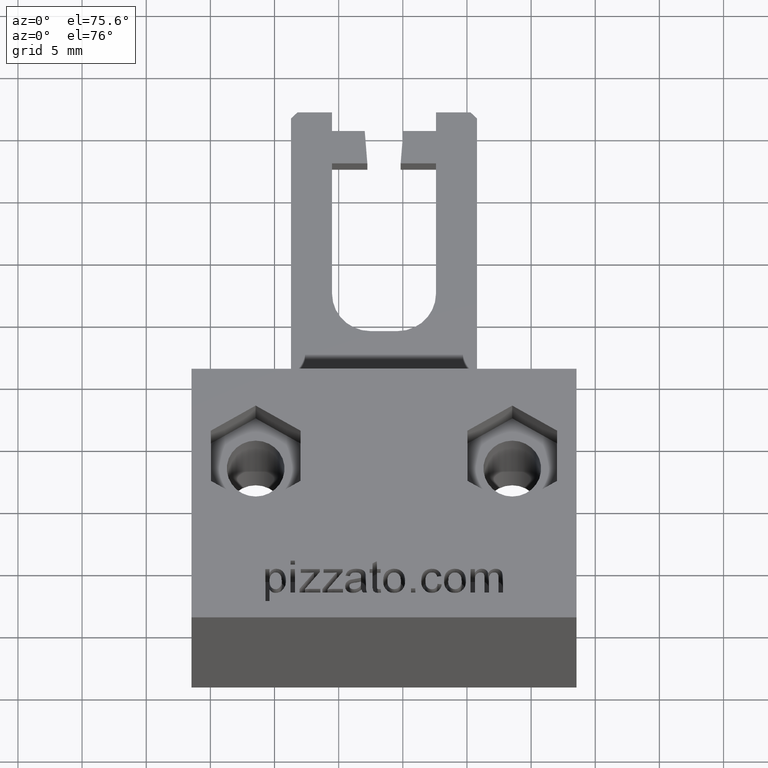
[diagram: clean part render]
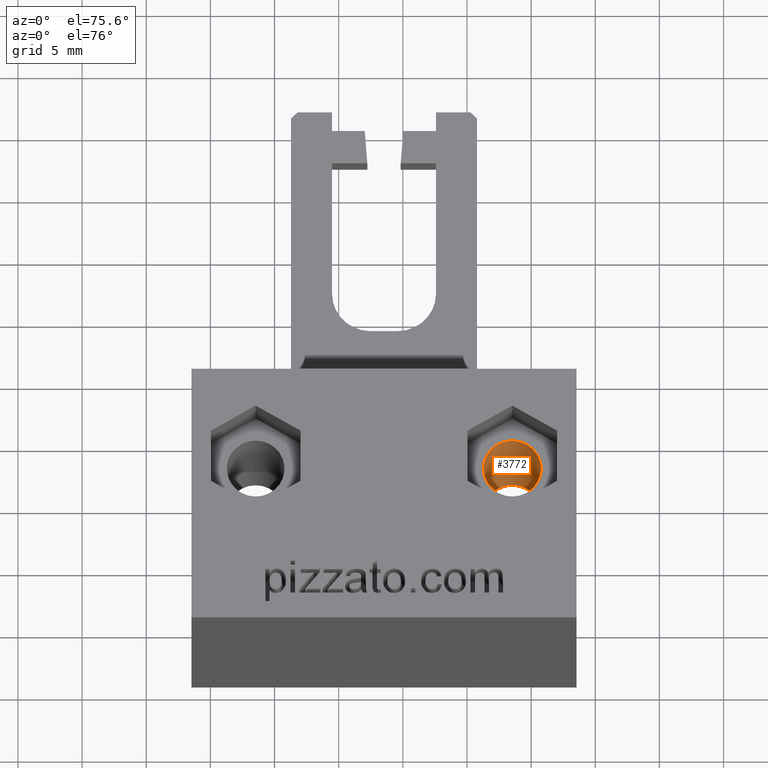
[diagram: same view with one face highlighted and labeled with its STEP entity id]
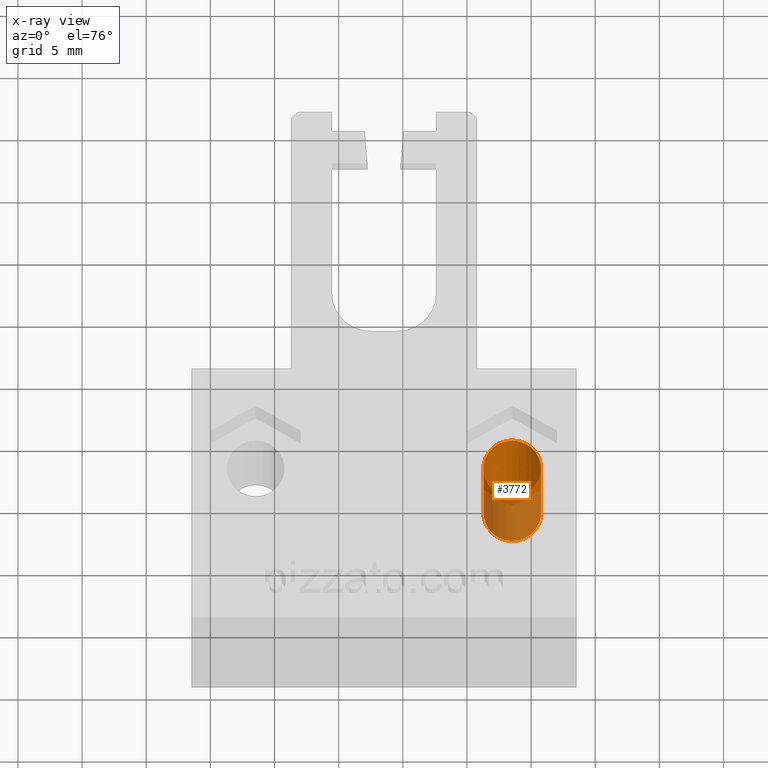
[diagram: x-ray of the same camera — body ghosted, the highlighted face saturated]
A machine part, auxiliary view. The second image highlights one B-rep face of the part: STEP entity #3772.
The next image is the same camera in x-ray: the body ghosted, the highlighted face saturated — about 43% of this face is hidden behind the body in this view.
In plain terms, the highlighted cylindrical surface (bore or boss wall) has radius 2.25 mm, axis along (-0, -0, -1).
Its self-contained STEP definition (entity closure, byte-faithful):
#229=FACE_BOUND('',#524,.T.);
#265=CIRCLE('',#3991,2.25);
#267=CIRCLE('',#3995,2.25);
#271=CYLINDRICAL_SURFACE('',#3994,2.25);
#309=FACE_OUTER_BOUND('',#523,.T.);
#523=EDGE_LOOP('',(#2663));
#524=EDGE_LOOP('',(#2664));
#1611=VERTEX_POINT('',#5026);
#1613=VERTEX_POINT('',#5032);
#2017=EDGE_CURVE('',#1611,#1611,#265,.T.);
#2019=EDGE_CURVE('',#1613,#1613,#267,.T.);
#2663=ORIENTED_EDGE('',*,*,#2017,.T.);
#2664=ORIENTED_EDGE('',*,*,#2019,.T.);
#3772=ADVANCED_FACE('',(#309,#229),#271,.F.);
#3991=AXIS2_PLACEMENT_3D('',#5027,#4281,#4282);
#3994=AXIS2_PLACEMENT_3D('',#5031,#4287,#4288);
#3995=AXIS2_PLACEMENT_3D('',#5033,#4289,#4290);
#4281=DIRECTION('center_axis',(0.,0.,-1.));
#4282=DIRECTION('ref_axis',(-1.,0.,0.));
#4287=DIRECTION('center_axis',(0.,0.,-1.));
#4288=DIRECTION('ref_axis',(-1.,0.,0.));
#4289=DIRECTION('center_axis',(0.,0.,1.));
#4290=DIRECTION('ref_axis',(-1.,0.,0.));
#5026=CARTESIAN_POINT('',(10.7467227950761,5.00277555862203,4.));
#5027=CARTESIAN_POINT('Origin',(12.9967227950761,5.00277555862203,4.));
#5031=CARTESIAN_POINT('Origin',(12.9967227950761,5.00277555862203,22.));
#5032=CARTESIAN_POINT('',(15.2467227950761,5.00277555862203,18.));
#5033=CARTESIAN_POINT('Origin',(12.9967227950761,5.00277555862203,18.));